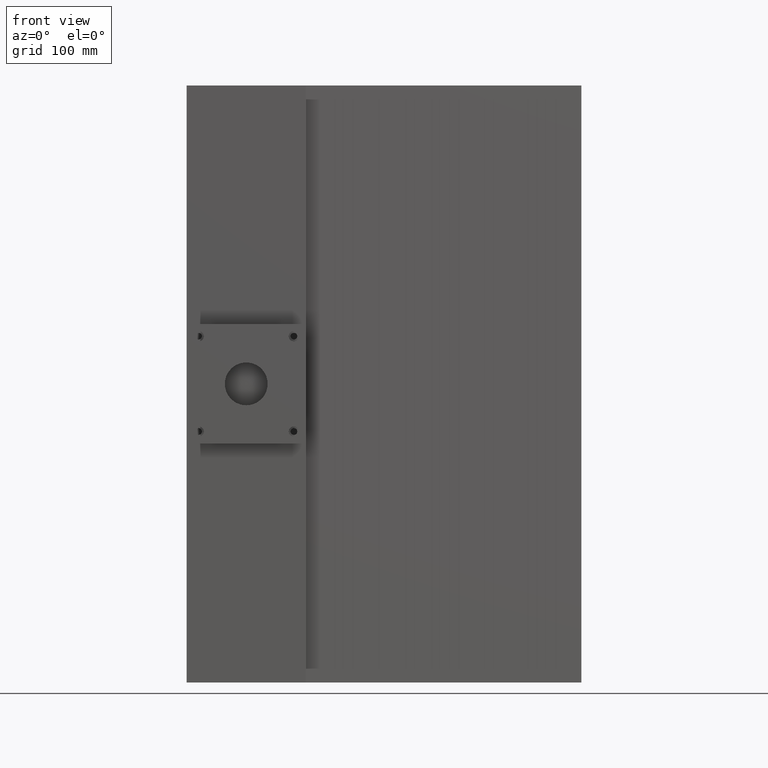
[diagram: clean part render]
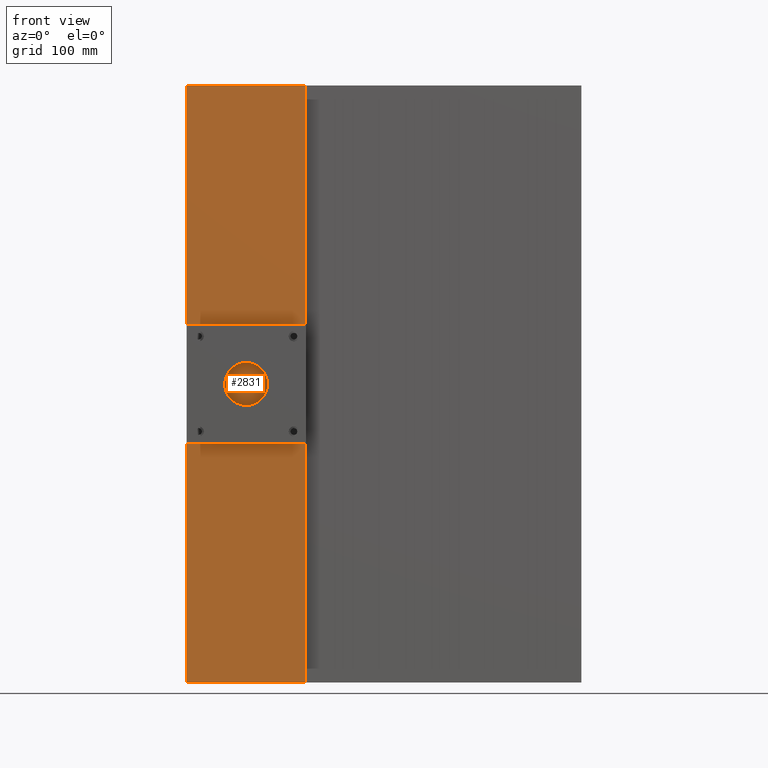
[diagram: same view with one face highlighted and labeled with its STEP entity id]
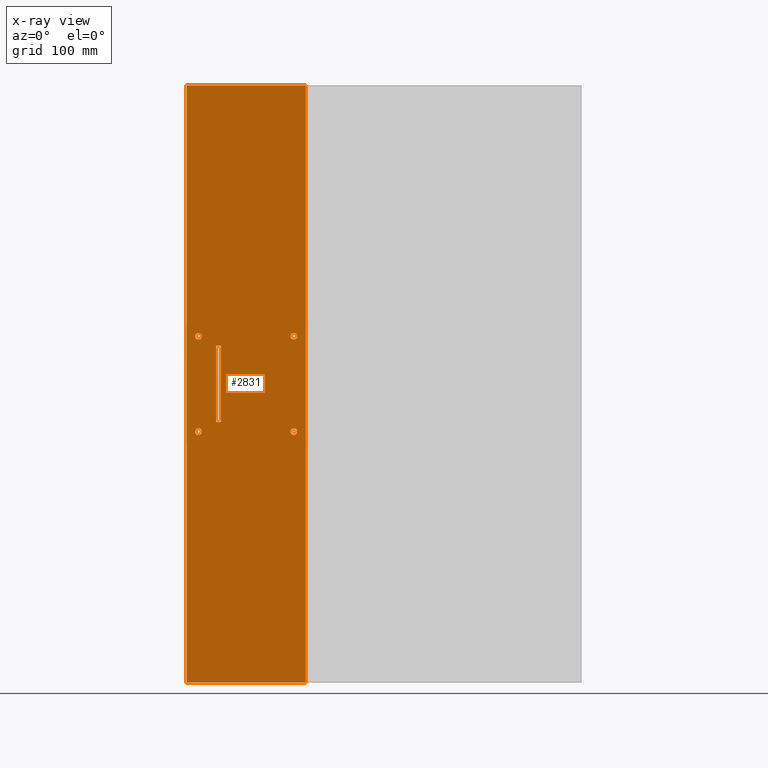
[diagram: x-ray of the same camera — body ghosted, the highlighted face saturated]
A machine part, front view. The second image highlights one B-rep face of the part: STEP entity #2831.
The next image is the same camera in x-ray: the body ghosted, the highlighted face saturated — about 0% of this face is hidden behind the body in this view.
In plain terms, the highlighted planar face has unit normal (0, -1, 0).
Its self-contained STEP definition (entity closure, byte-faithful):
#20 = LINE ( 'NONE', #2855, #2108 ) ;
#27 = CIRCLE ( 'NONE', #1339, 3.500000000000003100 ) ;
#54 = EDGE_CURVE ( 'NONE', #2425, #2774, #1527, .T. ) ;
#57 = EDGE_CURVE ( 'NONE', #2384, #62, #348, .T. ) ;
#58 = CARTESIAN_POINT ( 'NONE',  ( 77.99999999999991500, -129.9999999999999400, -350.0000000000001100 ) ) ;
#62 = VERTEX_POINT ( 'NONE', #2756 ) ;
#100 = LINE ( 'NONE', #2368, #622 ) ;
#116 = DIRECTION ( 'NONE',  ( 3.118604001756058900E-016, -1.000000000000000000, 0.0000000000000000000 ) ) ;
#130 = VECTOR ( 'NONE', #1429, 1000.000000000000000 ) ;
#135 = LINE ( 'NONE', #440, #2442 ) ;
#225 = DIRECTION ( 'NONE',  ( 0.0000000000000000000, 0.0000000000000000000, 1.000000000000000000 ) ) ;
#246 = CIRCLE ( 'NONE', #2114, 3.500000000000008400 ) ;
#247 = ORIENTED_EDGE ( 'NONE', *, *, #2727, .F. ) ;
#263 = CARTESIAN_POINT ( 'NONE',  ( 5.000000000000008900, -129.9999999999999700, -339.9999999999999400 ) ) ;
#266 = ORIENTED_EDGE ( 'NONE', *, *, #892, .F. ) ;
#279 = VERTEX_POINT ( 'NONE', #1944 ) ;
#308 = CIRCLE ( 'NONE', #1030, 3.500000000000008400 ) ;
#309 = CARTESIAN_POINT ( 'NONE',  ( 0.0000000000000000000, -130.0000000000000000, -613.0000000000000000 ) ) ;
#347 = EDGE_CURVE ( 'NONE', #62, #1379, #1896, .T. ) ;
#348 = LINE ( 'NONE', #2064, #2063 ) ;
#371 = EDGE_CURVE ( 'NONE', #1168, #1555, #2904, .T. ) ;
#381 = DIRECTION ( 'NONE',  ( -1.000000000000000000, -0.0000000000000000000, -0.0000000000000000000 ) ) ;
#388 = EDGE_LOOP ( 'NONE', ( #247, #470 ) ) ;
#396 = VERTEX_POINT ( 'NONE', #773 ) ;
#399 = VERTEX_POINT ( 'NONE', #2559 ) ;
#433 = CARTESIAN_POINT ( 'NONE',  ( 81.49999999999991500, -129.9999999999999400, -350.0000000000001100 ) ) ;
#440 = CARTESIAN_POINT ( 'NONE',  ( 93.99999999999997200, -129.9999999999999700, -613.0000000000000000 ) ) ;
#470 = ORIENTED_EDGE ( 'NONE', *, *, #2183, .F. ) ;
#482 = CARTESIAN_POINT ( 'NONE',  ( -18.50000000000008500, -129.9999999999999700, -250.0000000000000000 ) ) ;
#514 = ORIENTED_EDGE ( 'NONE', *, *, #347, .T. ) ;
#542 = VERTEX_POINT ( 'NONE', #860 ) ;
#543 = DIRECTION ( 'NONE',  ( 1.000000000000000000, 0.0000000000000000000, 0.0000000000000000000 ) ) ;
#556 = FACE_BOUND ( 'NONE', #388, .T. ) ;
#620 = AXIS2_PLACEMENT_3D ( 'NONE', #1445, #116, #1669 ) ;
#622 = VECTOR ( 'NONE', #1239, 1000.000000000000000 ) ;
#653 = DIRECTION ( 'NONE',  ( -1.000000000000000000, 0.0000000000000000000, 0.0000000000000000000 ) ) ;
#701 = DIRECTION ( 'NONE',  ( 1.000000000000000000, 0.0000000000000000000, 0.0000000000000000000 ) ) ;
#716 = AXIS2_PLACEMENT_3D ( 'NONE', #880, #1323, #2909 ) ;
#717 = AXIS2_PLACEMENT_3D ( 'NONE', #2334, #985, #2557 ) ;
#730 = DIRECTION ( 'NONE',  ( -1.000000000000000000, -0.0000000000000000000, -0.0000000000000000000 ) ) ;
#773 = CARTESIAN_POINT ( 'NONE',  ( -22.00000000000009600, -129.9999999999999700, -250.0000000000000000 ) ) ;
#775 = VERTEX_POINT ( 'NONE', #1631 ) ;
#789 = EDGE_LOOP ( 'NONE', ( #1073, #266, #2200, #2043 ) ) ;
#860 = CARTESIAN_POINT ( 'NONE',  ( 5.000000000000008900, -129.9999999999999700, -260.0000000000000000 ) ) ;
#868 = VECTOR ( 'NONE', #1305, 1000.000000000000000 ) ;
#880 = CARTESIAN_POINT ( 'NONE',  ( 93.99999999999997200, -129.9999999999999700, -613.0000000000000000 ) ) ;
#882 = CARTESIAN_POINT ( 'NONE',  ( -31.00000000000000000, -130.0000000000000000, 13.00000000000000000 ) ) ;
#892 = EDGE_CURVE ( 'NONE', #1168, #2028, #100, .T. ) ;
#929 = CARTESIAN_POINT ( 'NONE',  ( 81.49999999999991500, -129.9999999999999400, -250.0000000000000000 ) ) ;
#946 = DIRECTION ( 'NONE',  ( 3.118604001756058900E-016, -1.000000000000000000, 0.0000000000000000000 ) ) ;
#961 = CARTESIAN_POINT ( 'NONE',  ( -31.00000000000000000, -130.0000000000000000, -613.0000000000000000 ) ) ;
#985 = DIRECTION ( 'NONE',  ( 3.118604001756058900E-016, -1.000000000000000000, 0.0000000000000000000 ) ) ;
#1001 = EDGE_CURVE ( 'NONE', #399, #775, #1003, .T. ) ;
#1003 = CIRCLE ( 'NONE', #620, 3.500000000000003100 ) ;
#1030 = AXIS2_PLACEMENT_3D ( 'NONE', #2427, #1095, #2665 ) ;
#1033 = ORIENTED_EDGE ( 'NONE', *, *, #2826, .F. ) ;
#1073 = ORIENTED_EDGE ( 'NONE', *, *, #1991, .F. ) ;
#1095 = DIRECTION ( 'NONE',  ( 3.118604001756058900E-016, -1.000000000000000000, 0.0000000000000000000 ) ) ;
#1107 = DIRECTION ( 'NONE',  ( 3.118604001756058900E-016, -1.000000000000000000, 0.0000000000000000000 ) ) ;
#1148 = FACE_BOUND ( 'NONE', #1186, .T. ) ;
#1168 = VERTEX_POINT ( 'NONE', #961 ) ;
#1186 = EDGE_LOOP ( 'NONE', ( #2671, #1917 ) ) ;
#1196 = AXIS2_PLACEMENT_3D ( 'NONE', #2297, #946, #2517 ) ;
#1237 = EDGE_CURVE ( 'NONE', #2324, #2319, #2332, .T. ) ;
#1239 = DIRECTION ( 'NONE',  ( 0.0000000000000000000, 0.0000000000000000000, 1.000000000000000000 ) ) ;
#1244 = LINE ( 'NONE', #2239, #2376 ) ;
#1255 = EDGE_LOOP ( 'NONE', ( #2750, #2814 ) ) ;
#1296 = EDGE_CURVE ( 'NONE', #542, #1379, #20, .T. ) ;
#1305 = DIRECTION ( 'NONE',  ( 1.000000000000000000, -0.0000000000000000000, -0.0000000000000000000 ) ) ;
#1323 = DIRECTION ( 'NONE',  ( 0.0000000000000000000, -1.000000000000000000, 0.0000000000000000000 ) ) ;
#1339 = AXIS2_PLACEMENT_3D ( 'NONE', #929, #2496, #543 ) ;
#1379 = VERTEX_POINT ( 'NONE', #2547 ) ;
#1429 = DIRECTION ( 'NONE',  ( 1.000000000000000000, -0.0000000000000000000, -0.0000000000000000000 ) ) ;
#1445 = CARTESIAN_POINT ( 'NONE',  ( 81.49999999999991500, -129.9999999999999400, -250.0000000000000000 ) ) ;
#1515 = ORIENTED_EDGE ( 'NONE', *, *, #1296, .F. ) ;
#1527 = CIRCLE ( 'NONE', #1196, 3.500000000000006700 ) ;
#1555 = VERTEX_POINT ( 'NONE', #2449 ) ;
#1608 = CARTESIAN_POINT ( 'NONE',  ( -15.00000000000007800, -129.9999999999999700, -350.0000000000001100 ) ) ;
#1631 = CARTESIAN_POINT ( 'NONE',  ( 77.99999999999991500, -129.9999999999999400, -250.0000000000000000 ) ) ;
#1669 = DIRECTION ( 'NONE',  ( 1.000000000000000000, 0.0000000000000000000, 0.0000000000000000000 ) ) ;
#1676 = EDGE_LOOP ( 'NONE', ( #514, #1515, #2395, #2133 ) ) ;
#1702 = EDGE_CURVE ( 'NONE', #775, #399, #27, .T. ) ;
#1763 = PLANE ( 'NONE',  #716 ) ;
#1764 = DIRECTION ( 'NONE',  ( 0.0000000000000000000, 0.0000000000000000000, 1.000000000000000000 ) ) ;
#1804 = FACE_BOUND ( 'NONE', #1255, .T. ) ;
#1847 = EDGE_LOOP ( 'NONE', ( #2120, #1033 ) ) ;
#1856 = DIRECTION ( 'NONE',  ( 0.0000000000000000000, 0.0000000000000000000, 1.000000000000000000 ) ) ;
#1880 = AXIS2_PLACEMENT_3D ( 'NONE', #433, #1975, #653 ) ;
#1896 = LINE ( 'NONE', #309, #1962 ) ;
#1917 = ORIENTED_EDGE ( 'NONE', *, *, #1237, .F. ) ;
#1944 = CARTESIAN_POINT ( 'NONE',  ( 93.99999999999997200, -129.9999999999999700, 13.00000000000000000 ) ) ;
#1962 = VECTOR ( 'NONE', #1856, 1000.000000000000000 ) ;
#1975 = DIRECTION ( 'NONE',  ( 3.118604001756058900E-016, -1.000000000000000000, 0.0000000000000000000 ) ) ;
#1989 = EDGE_CURVE ( 'NONE', #2319, #2324, #2812, .T. ) ;
#1991 = EDGE_CURVE ( 'NONE', #2028, #279, #2058, .T. ) ;
#2028 = VERTEX_POINT ( 'NONE', #882 ) ;
#2032 = DIRECTION ( 'NONE',  ( 3.118604001756058900E-016, -1.000000000000000000, 0.0000000000000000000 ) ) ;
#2039 = CARTESIAN_POINT ( 'NONE',  ( -22.00000000000009600, -129.9999999999999700, -350.0000000000001100 ) ) ;
#2043 = ORIENTED_EDGE ( 'NONE', *, *, #2219, .T. ) ;
#2058 = LINE ( 'NONE', #2898, #868 ) ;
#2063 = VECTOR ( 'NONE', #730, 1000.000000000000000 ) ;
#2064 = CARTESIAN_POINT ( 'NONE',  ( 278.7316203875614100, -129.9999999999999100, -339.9999999999999400 ) ) ;
#2108 = VECTOR ( 'NONE', #381, 1000.000000000000000 ) ;
#2114 = AXIS2_PLACEMENT_3D ( 'NONE', #482, #2032, #701 ) ;
#2120 = ORIENTED_EDGE ( 'NONE', *, *, #54, .F. ) ;
#2133 = ORIENTED_EDGE ( 'NONE', *, *, #57, .T. ) ;
#2183 = EDGE_CURVE ( 'NONE', #396, #2321, #308, .T. ) ;
#2200 = ORIENTED_EDGE ( 'NONE', *, *, #371, .T. ) ;
#2219 = EDGE_CURVE ( 'NONE', #1555, #279, #135, .T. ) ;
#2239 = CARTESIAN_POINT ( 'NONE',  ( 5.000000000000008900, -129.9999999999999700, -613.0000000000000000 ) ) ;
#2290 = EDGE_CURVE ( 'NONE', #2384, #542, #1244, .T. ) ;
#2292 = CARTESIAN_POINT ( 'NONE',  ( 84.99999999999992900, -129.9999999999999400, -350.0000000000001100 ) ) ;
#2297 = CARTESIAN_POINT ( 'NONE',  ( -18.50000000000008500, -129.9999999999999700, -350.0000000000001100 ) ) ;
#2319 = VERTEX_POINT ( 'NONE', #2292 ) ;
#2321 = VERTEX_POINT ( 'NONE', #2748 ) ;
#2324 = VERTEX_POINT ( 'NONE', #58 ) ;
#2332 = CIRCLE ( 'NONE', #717, 3.500000000000003100 ) ;
#2334 = CARTESIAN_POINT ( 'NONE',  ( 81.49999999999991500, -129.9999999999999400, -350.0000000000001100 ) ) ;
#2337 = CIRCLE ( 'NONE', #2885, 3.500000000000006700 ) ;
#2368 = CARTESIAN_POINT ( 'NONE',  ( -31.00000000000000000, -130.0000000000000000, -613.0000000000000000 ) ) ;
#2376 = VECTOR ( 'NONE', #225, 1000.000000000000000 ) ;
#2384 = VERTEX_POINT ( 'NONE', #263 ) ;
#2395 = ORIENTED_EDGE ( 'NONE', *, *, #2290, .F. ) ;
#2403 = FACE_BOUND ( 'NONE', #1847, .T. ) ;
#2425 = VERTEX_POINT ( 'NONE', #1608 ) ;
#2427 = CARTESIAN_POINT ( 'NONE',  ( -18.50000000000008500, -129.9999999999999700, -250.0000000000000000 ) ) ;
#2442 = VECTOR ( 'NONE', #1764, 1000.000000000000000 ) ;
#2444 = CARTESIAN_POINT ( 'NONE',  ( -18.50000000000008500, -129.9999999999999700, -350.0000000000001100 ) ) ;
#2449 = CARTESIAN_POINT ( 'NONE',  ( 93.99999999999997200, -129.9999999999999700, -613.0000000000000000 ) ) ;
#2496 = DIRECTION ( 'NONE',  ( 3.118604001756058900E-016, -1.000000000000000000, 0.0000000000000000000 ) ) ;
#2517 = DIRECTION ( 'NONE',  ( -1.000000000000000000, 0.0000000000000000000, 0.0000000000000000000 ) ) ;
#2547 = CARTESIAN_POINT ( 'NONE',  ( 0.0000000000000000000, -130.0000000000000000, -260.0000000000000000 ) ) ;
#2557 = DIRECTION ( 'NONE',  ( -1.000000000000000000, 0.0000000000000000000, 0.0000000000000000000 ) ) ;
#2559 = CARTESIAN_POINT ( 'NONE',  ( 84.99999999999992900, -129.9999999999999400, -250.0000000000000000 ) ) ;
#2665 = DIRECTION ( 'NONE',  ( 1.000000000000000000, 0.0000000000000000000, 0.0000000000000000000 ) ) ;
#2671 = ORIENTED_EDGE ( 'NONE', *, *, #1989, .F. ) ;
#2682 = DIRECTION ( 'NONE',  ( -1.000000000000000000, 0.0000000000000000000, 0.0000000000000000000 ) ) ;
#2727 = EDGE_CURVE ( 'NONE', #2321, #396, #246, .T. ) ;
#2748 = CARTESIAN_POINT ( 'NONE',  ( -15.00000000000007800, -129.9999999999999700, -250.0000000000000000 ) ) ;
#2750 = ORIENTED_EDGE ( 'NONE', *, *, #1001, .F. ) ;
#2756 = CARTESIAN_POINT ( 'NONE',  ( 0.0000000000000000000, -130.0000000000000000, -339.9999999999999400 ) ) ;
#2758 = FACE_OUTER_BOUND ( 'NONE', #789, .T. ) ;
#2774 = VERTEX_POINT ( 'NONE', #2039 ) ;
#2797 = CARTESIAN_POINT ( 'NONE',  ( 0.0000000000000000000, -130.0000000000000000, -613.0000000000000000 ) ) ;
#2812 = CIRCLE ( 'NONE', #1880, 3.500000000000003100 ) ;
#2814 = ORIENTED_EDGE ( 'NONE', *, *, #1702, .F. ) ;
#2826 = EDGE_CURVE ( 'NONE', #2774, #2425, #2337, .T. ) ;
#2831 = ADVANCED_FACE ( 'NONE', ( #1804, #2403, #1148, #556, #2873, #2758 ), #1763, .T. ) ;
#2855 = CARTESIAN_POINT ( 'NONE',  ( 278.7316203875614100, -129.9999999999999100, -260.0000000000000000 ) ) ;
#2873 = FACE_BOUND ( 'NONE', #1676, .T. ) ;
#2885 = AXIS2_PLACEMENT_3D ( 'NONE', #2444, #1107, #2682 ) ;
#2898 = CARTESIAN_POINT ( 'NONE',  ( 93.99999999999997200, -129.9999999999999700, 13.00000000000000000 ) ) ;
#2904 = LINE ( 'NONE', #2797, #130 ) ;
#2909 = DIRECTION ( 'NONE',  ( 0.0000000000000000000, -0.0000000000000000000, -1.000000000000000000 ) ) ;